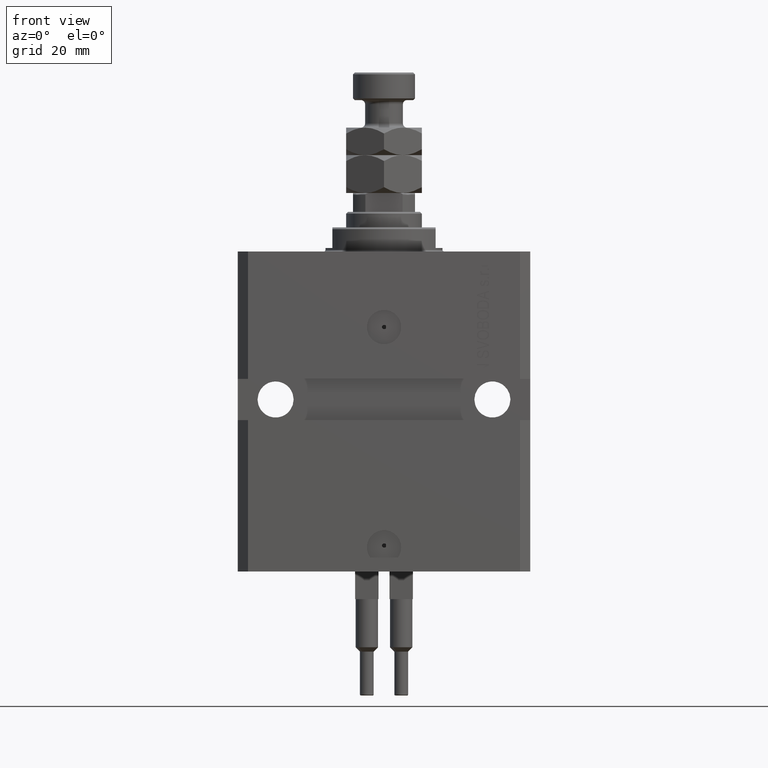
[diagram: clean part render]
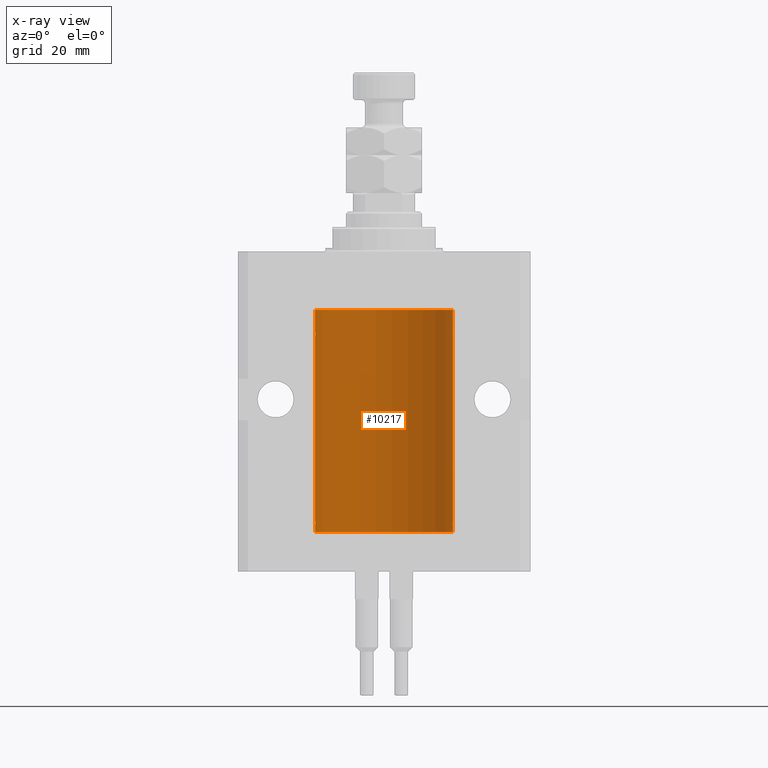
[diagram: x-ray — body ghosted, one internal face saturated and labeled with its STEP entity id]
A machine part, front view, then the same camera in x-ray: the body is ghosted and one INTERNAL B-rep face — a face not visible from any outside direction — is saturated and labeled: STEP entity #10217.
In plain terms, the highlighted cylindrical surface (partial cylindrical patch) has radius 20 mm, axis along (0, 0, 1).
Its self-contained STEP definition (entity closure, byte-faithful):
#104 = CARTESIAN_POINT ( 'NONE',  ( 19.99766100389833312, 0.3150982863324784944, -79.54594438241281296 ) ) ;
#196 = CARTESIAN_POINT ( 'NONE',  ( 0.000000000000000000, 0.000000000000000000, -81.59999999999999432 ) ) ;
#358 = CARTESIAN_POINT ( 'NONE',  ( 19.99947351343144319, 0.1636818329565372654, -79.60872855715646779 ) ) ;
#508 = EDGE_CURVE ( 'NONE', #32989, #44664, #4079, .T. ) ;
#769 = CARTESIAN_POINT ( 'NONE',  ( 19.99999999999999645, 0.1631318418333158327, -78.37500000000015632 ) ) ;
#1113 = EDGE_CURVE ( 'NONE', #4769, #19241, #6938, .T. ) ;
#1137 = CARTESIAN_POINT ( 'NONE',  ( -20.00000000000010303, 3.580159278407742946E-13, -24.62500000000332889 ) ) ;
#1195 = CARTESIAN_POINT ( 'NONE',  ( 20.00000000000010303, 3.555666340528858977E-13, -23.37499999999667111 ) ) ;
#2999 = CARTESIAN_POINT ( 'NONE',  ( -20.00000000000000000, -1.124177324826063808E-14, -78.37500000000000000 ) ) ;
#3001 = ORIENTED_EDGE ( 'NONE', *, *, #43287, .T. ) ;
#3592 = VECTOR ( 'NONE', #30779, 1000.000000000000000 ) ;
#3833 = CARTESIAN_POINT ( 'NONE',  ( -19.99256581701871838, 0.5573276956901996870, -78.67348565770949165 ) ) ;
#4079 = LINE ( 'NONE', #34557, #10216 ) ;
#4588 = CARTESIAN_POINT ( 'NONE',  ( -20.00000000000000355, 0.1631688615953343080, -79.62499999999984368 ) ) ;
#4769 = VERTEX_POINT ( 'NONE', #2999 ) ;
#5468 = VERTEX_POINT ( 'NONE', #13057 ) ;
#6118 = LINE ( 'NONE', #42199, #38127 ) ;
#6938 = LINE ( 'NONE', #11525, #45359 ) ;
#7106 = CARTESIAN_POINT ( 'NONE',  ( -19.99947377218718714, 0.1636439183262877461, -23.39126364004656011 ) ) ;
#7127 = VECTOR ( 'NONE', #43490, 1000.000000000000000 ) ;
#7368 = DIRECTION ( 'NONE',  ( 1.000000000000000000, 0.000000000000000000, 0.000000000000000000 ) ) ;
#7578 = ORIENTED_EDGE ( 'NONE', *, *, #29628, .T. ) ;
#8122 = DIRECTION ( 'NONE',  ( -0.000000000000000000, -0.000000000000000000, 1.000000000000000000 ) ) ;
#8943 = CARTESIAN_POINT ( 'NONE',  ( 20.00000000000000000, 0.000000000000000000, -81.59999999999999432 ) ) ;
#9115 = B_SPLINE_CURVE_WITH_KNOTS ( 'NONE', 3,
 ( #23971, #39580, #36264, #35755, #27553, #1195 ),
 .UNSPECIFIED., .F., .F.,
 ( 4, 2, 4 ),
 ( 0.0009772989342736214998, 0.001465726722058845102, 0.001954154509844068920 ),
 .UNSPECIFIED. ) ;
#9180 = CARTESIAN_POINT ( 'NONE',  ( -19.99023018003212471, 0.6250578794725522025, -79.16284809704971792 ) ) ;
#9710 = CARTESIAN_POINT ( 'NONE',  ( -20.00000000000010303, 3.580159286679549072E-13, -79.62500000000332534 ) ) ;
#9898 = VERTEX_POINT ( 'NONE', #19754 ) ;
#10132 = EDGE_CURVE ( 'NONE', #44428, #25129, #11446, .T. ) ;
#10181 = EDGE_CURVE ( 'NONE', #27315, #44428, #39509, .T. ) ;
#10216 = VECTOR ( 'NONE', #49885, 1000.000000000000000 ) ;
#10217 = ADVANCED_FACE ( 'NONE', ( #19886 ), #31413, .F. ) ;
#11192 = CARTESIAN_POINT ( 'NONE',  ( -19.99638934703457593, 0.3843678041337688644, -23.50046362978100944 ) ) ;
#11446 = LINE ( 'NONE', #19642, #50085 ) ;
#11525 = CARTESIAN_POINT ( 'NONE',  ( -20.00000000000000000, 2.449293598294706513E-15, -81.59999999999999432 ) ) ;
#12602 = CARTESIAN_POINT ( 'NONE',  ( 20.00000000000000000, 0.000000000000000000, -81.59999999999999432 ) ) ;
#13057 = CARTESIAN_POINT ( 'NONE',  ( 20.00000000000000000, 0.000000000000000000, -17.00000000000000000 ) ) ;
#13471 = CARTESIAN_POINT ( 'NONE',  ( 19.99023198964909298, 0.6250000000081508134, -23.99999999999910472 ) ) ;
#13788 = CARTESIAN_POINT ( 'NONE',  ( -20.00000000000000000, 2.449293598294706513E-15, -17.00000000000000000 ) ) ;
#14223 = CARTESIAN_POINT ( 'NONE',  ( 19.99023198964933812, 0.6250000000002681189, -24.16311014829328130 ) ) ;
#14521 = CARTESIAN_POINT ( 'NONE',  ( -19.99999999999999645, 0.08259581631026780002, -23.37500000000000000 ) ) ;
#14697 = VERTEX_POINT ( 'NONE', #48004 ) ;
#15074 = CARTESIAN_POINT ( 'NONE',  ( -19.99999999999999289, 0.08259581631026131909, -78.37499999999998579 ) ) ;
#15147 = LINE ( 'NONE', #30026, #3592 ) ;
#15395 = ORIENTED_EDGE ( 'NONE', *, *, #10132, .F. ) ;
#15644 = EDGE_CURVE ( 'NONE', #4769, #25129, #34748, .T. ) ;
#16206 = CARTESIAN_POINT ( 'NONE',  ( 19.99023198964934167, 0.6250000000002757794, -79.16311014829327064 ) ) ;
#16971 = EDGE_CURVE ( 'NONE', #44442, #49338, #6118, .T. ) ;
#17143 = EDGE_LOOP ( 'NONE', ( #15395, #49058, #3001, #36199, #49086, #35860, #39568, #38619, #21271, #46568, #22314, #7578, #30399, #34751 ) ) ;
#17554 = CARTESIAN_POINT ( 'NONE',  ( 20.00000000000000000, 1.042771508482559297E-15, -24.62500000000000000 ) ) ;
#18076 = CARTESIAN_POINT ( 'NONE',  ( 19.99947351343144675, 0.1636818329565319363, -24.60872855715643936 ) ) ;
#18274 = CIRCLE ( 'NONE', #25662, 20.00000000000000000 ) ;
#18874 = CARTESIAN_POINT ( 'NONE',  ( -19.99766197842594906, 0.3150331617867667688, -23.45402070102505476 ) ) ;
#19047 = AXIS2_PLACEMENT_3D ( 'NONE', #196, #26823, #7368 ) ;
#19241 = VERTEX_POINT ( 'NONE', #41200 ) ;
#19642 = CARTESIAN_POINT ( 'NONE',  ( -20.00000000000000000, 2.449293598294706513E-15, -81.59999999999999432 ) ) ;
#19754 = CARTESIAN_POINT ( 'NONE',  ( 20.00000000000000000, -4.058908006348821872E-15, -79.62500000000000000 ) ) ;
#19886 = FACE_OUTER_BOUND ( 'NONE', #17143, .T. ) ;
#19934 = CARTESIAN_POINT ( 'NONE',  ( -19.99253506710754991, 0.5587120480776742726, -79.32511620830248944 ) ) ;
#20995 = EDGE_CURVE ( 'NONE', #49338, #48951, #35438, .T. ) ;
#21271 = ORIENTED_EDGE ( 'NONE', *, *, #32471, .T. ) ;
#22182 = CARTESIAN_POINT ( 'NONE',  ( 19.99256353007439202, 0.5574106582031151946, -24.32639035180115172 ) ) ;
#22314 = ORIENTED_EDGE ( 'NONE', *, *, #508, .F. ) ;
#22735 = DIRECTION ( 'NONE',  ( 1.000000000000000000, 0.000000000000000000, 0.000000000000000000 ) ) ;
#23289 = CARTESIAN_POINT ( 'NONE',  ( -20.00000000000000000, -1.124177324826063808E-14, -78.37500000000000000 ) ) ;
#23312 = CARTESIAN_POINT ( 'NONE',  ( -20.00000000000000000, 2.449293598294706513E-15, -81.59999999999999432 ) ) ;
#23971 = CARTESIAN_POINT ( 'NONE',  ( 19.99023198964909298, 0.6250000000081508134, -23.99999999999910472 ) ) ;
#24715 = B_SPLINE_CURVE_WITH_KNOTS ( 'NONE', 3,
 ( #49583, #14521, #7106, #18874, #11192, #26815, #44367, #40539, #50594, #42925, #38842, #1137 ),
 .UNSPECIFIED., .F., .F.,
 ( 4, 2, 2, 2, 2, 4 ),
 ( 5.848927291235706941E-19, 0.0002442693137305304075, 0.0004885386274610601645, 0.0009770772549221123059, 0.001465615882383164339, 0.001954154509844215938 ),
 .UNSPECIFIED. ) ;
#25129 = VERTEX_POINT ( 'NONE', #9710 ) ;
#25510 = CARTESIAN_POINT ( 'NONE',  ( 19.99638788807192924, 0.3844440352705356112, -24.49948058986480603 ) ) ;
#25662 = AXIS2_PLACEMENT_3D ( 'NONE', #25937, #45879, #42305 ) ;
#25937 = CARTESIAN_POINT ( 'NONE',  ( 0.000000000000000000, 0.000000000000000000, -17.00000000000000000 ) ) ;
#26815 = CARTESIAN_POINT ( 'NONE',  ( -19.99256581701871482, 0.5573276956902001311, -23.67348565770948809 ) ) ;
#26823 = DIRECTION ( 'NONE',  ( 0.000000000000000000, 0.000000000000000000, 1.000000000000000000 ) ) ;
#27169 = VERTEX_POINT ( 'NONE', #33221 ) ;
#27231 = CARTESIAN_POINT ( 'NONE',  ( 20.00000000000000000, -4.058908006348821872E-15, -79.62500000000000000 ) ) ;
#27315 = VERTEX_POINT ( 'NONE', #12602 ) ;
#27317 = EDGE_CURVE ( 'NONE', #9898, #27169, #41182, .T. ) ;
#27553 = CARTESIAN_POINT ( 'NONE',  ( 19.99999999999999645, 0.1631318418333146114, -23.37500000000016698 ) ) ;
#27615 = CARTESIAN_POINT ( 'NONE',  ( -20.00000000000010303, 3.580159286679549072E-13, -79.62500000000332534 ) ) ;
#28132 = LINE ( 'NONE', #8943, #7127 ) ;
#29628 = EDGE_CURVE ( 'NONE', #32989, #19241, #24715, .T. ) ;
#30026 = CARTESIAN_POINT ( 'NONE',  ( 20.00000000000000000, 0.000000000000000000, -81.59999999999999432 ) ) ;
#30399 = ORIENTED_EDGE ( 'NONE', *, *, #1113, .F. ) ;
#30707 = CARTESIAN_POINT ( 'NONE',  ( -19.99947377218718003, 0.1636439183262797525, -78.39126364004653169 ) ) ;
#30779 = DIRECTION ( 'NONE',  ( -0.000000000000000000, -0.000000000000000000, 1.000000000000000000 ) ) ;
#30982 = CARTESIAN_POINT ( 'NONE',  ( 19.99023198964936299, 0.6249999999995806688, -78.83696384779808852 ) ) ;
#31075 = CARTESIAN_POINT ( 'NONE',  ( 19.99023198964909298, 0.6250000000081574747, -78.99999999999911893 ) ) ;
#31413 = CYLINDRICAL_SURFACE ( 'NONE', #44397, 20.00000000000000000 ) ;
#31483 = CARTESIAN_POINT ( 'NONE',  ( 20.00000000000010303, 3.555666352936568165E-13, -78.37499999999667466 ) ) ;
#32447 = EDGE_CURVE ( 'NONE', #5468, #44664, #18274, .T. ) ;
#32471 = EDGE_CURVE ( 'NONE', #14697, #5468, #15147, .T. ) ;
#32735 = CARTESIAN_POINT ( 'NONE',  ( -19.99023380173166231, 0.6249420416828449509, -78.83670793056396064 ) ) ;
#32989 = VERTEX_POINT ( 'NONE', #47826 ) ;
#33221 = CARTESIAN_POINT ( 'NONE',  ( 19.99023198964909298, 0.6250000000081574747, -78.99999999999911893 ) ) ;
#33746 = EDGE_CURVE ( 'NONE', #27169, #44442, #50602, .T. ) ;
#34557 = CARTESIAN_POINT ( 'NONE',  ( -20.00000000000000000, 2.449293598294706513E-15, -81.59999999999999432 ) ) ;
#34748 = B_SPLINE_CURVE_WITH_KNOTS ( 'NONE', 3,
 ( #23289, #15074, #30707, #46306, #38896, #3833, #32735, #9180, #19934, #36583, #4588, #27615 ),
 .UNSPECIFIED., .F., .F.,
 ( 4, 2, 2, 2, 2, 4 ),
 ( 1.522880481566060999E-18, 0.0002442693137305179392, 0.0004885386274610343605, 0.0009770772549220966934, 0.001465615882383158918, 0.001954154509844221576 ),
 .UNSPECIFIED. ) ;
#34751 = ORIENTED_EDGE ( 'NONE', *, *, #15644, .T. ) ;
#35015 = DIRECTION ( 'NONE',  ( -0.000000000000000000, -0.000000000000000000, 1.000000000000000000 ) ) ;
#35420 = CARTESIAN_POINT ( 'NONE',  ( 19.99999999999999645, 0.08261455565447825555, -79.62499999999997158 ) ) ;
#35438 = B_SPLINE_CURVE_WITH_KNOTS ( 'NONE', 3,
 ( #49532, #48781, #18076, #49040, #25510, #22182, #14223, #13471 ),
 .UNSPECIFIED., .F., .F.,
 ( 4, 2, 2, 4 ),
 ( 1.013370767385449693E-18, 0.0002443247335684061339, 0.0004886494671368111836, 0.0009772989342736214998 ),
 .UNSPECIFIED. ) ;
#35755 = CARTESIAN_POINT ( 'NONE',  ( 19.99769474220010679, 0.3253030616682399678, -23.44140633897632142 ) ) ;
#35860 = ORIENTED_EDGE ( 'NONE', *, *, #16971, .T. ) ;
#36199 = ORIENTED_EDGE ( 'NONE', *, *, #27317, .T. ) ;
#36264 = CARTESIAN_POINT ( 'NONE',  ( 19.99253733128256272, 0.5586305947778931191, -23.67476036735258305 ) ) ;
#36583 = CARTESIAN_POINT ( 'NONE',  ( -19.99769349528941831, 0.3253804398728615266, -79.55855820727680339 ) ) ;
#38127 = VECTOR ( 'NONE', #48847, 1000.000000000000000 ) ;
#38619 = ORIENTED_EDGE ( 'NONE', *, *, #41967, .T. ) ;
#38842 = CARTESIAN_POINT ( 'NONE',  ( -20.00000000000000000, 0.1631688615953320320, -24.62499999999985434 ) ) ;
#38896 = CARTESIAN_POINT ( 'NONE',  ( -19.99638934703457238, 0.3843678041337651452, -78.50046362978099523 ) ) ;
#38900 = CARTESIAN_POINT ( 'NONE',  ( 19.99023198964909298, 0.6250000000081508134, -23.99999999999910472 ) ) ;
#39504 = CARTESIAN_POINT ( 'NONE',  ( 19.99256353007439202, 0.5574106582031174151, -79.32639035180115172 ) ) ;
#39509 = CIRCLE ( 'NONE', #19047, 20.00000000000000000 ) ;
#39568 = ORIENTED_EDGE ( 'NONE', *, *, #20995, .T. ) ;
#39580 = CARTESIAN_POINT ( 'NONE',  ( 19.99023198964935588, 0.6249999999995746736, -23.83696384779806721 ) ) ;
#39667 = CARTESIAN_POINT ( 'NONE',  ( 19.99023198964909298, 0.6250000000081574747, -78.99999999999911893 ) ) ;
#39927 = CARTESIAN_POINT ( 'NONE',  ( 19.99253733128256627, 0.5586305947779004466, -78.67476036735259015 ) ) ;
#40539 = CARTESIAN_POINT ( 'NONE',  ( -19.99023018003212471, 0.6250578794725500931, -24.16284809704970371 ) ) ;
#41182 = B_SPLINE_CURVE_WITH_KNOTS ( 'NONE', 3,
 ( #27231, #35420, #358, #104, #43591, #39504, #16206, #31075 ),
 .UNSPECIFIED., .F., .F.,
 ( 4, 2, 2, 4 ),
 ( 3.944467879762244826E-18, 0.0002443247335684012008, 0.0004886494671367983900, 0.0009772989342736221503 ),
 .UNSPECIFIED. ) ;
#41200 = CARTESIAN_POINT ( 'NONE',  ( -20.00000000000010303, 3.580159278407742946E-13, -24.62500000000332889 ) ) ;
#41967 = EDGE_CURVE ( 'NONE', #48951, #14697, #9115, .T. ) ;
#42199 = CARTESIAN_POINT ( 'NONE',  ( 20.00000000000000000, 0.000000000000000000, -81.59999999999999432 ) ) ;
#42305 = DIRECTION ( 'NONE',  ( 1.000000000000000000, 0.000000000000000000, 0.000000000000000000 ) ) ;
#42751 = CARTESIAN_POINT ( 'NONE',  ( 19.99769474220011034, 0.3253030616682413001, -78.44140633897630721 ) ) ;
#42925 = CARTESIAN_POINT ( 'NONE',  ( -19.99769349528941120, 0.3253804398728645242, -24.55855820727680339 ) ) ;
#43287 = EDGE_CURVE ( 'NONE', #27315, #9898, #28132, .T. ) ;
#43490 = DIRECTION ( 'NONE',  ( -0.000000000000000000, -0.000000000000000000, 1.000000000000000000 ) ) ;
#43591 = CARTESIAN_POINT ( 'NONE',  ( 19.99638788807192924, 0.3844440352705359998, -79.49948058986481669 ) ) ;
#44367 = CARTESIAN_POINT ( 'NONE',  ( -19.99023380173166231, 0.6249420416828462832, -23.83670793056396064 ) ) ;
#44397 = AXIS2_PLACEMENT_3D ( 'NONE', #47007, #8122, #22735 ) ;
#44428 = VERTEX_POINT ( 'NONE', #23312 ) ;
#44442 = VERTEX_POINT ( 'NONE', #46829 ) ;
#44664 = VERTEX_POINT ( 'NONE', #13788 ) ;
#45359 = VECTOR ( 'NONE', #46080, 1000.000000000000000 ) ;
#45879 = DIRECTION ( 'NONE',  ( 0.000000000000000000, 0.000000000000000000, 1.000000000000000000 ) ) ;
#46080 = DIRECTION ( 'NONE',  ( -0.000000000000000000, -0.000000000000000000, 1.000000000000000000 ) ) ;
#46306 = CARTESIAN_POINT ( 'NONE',  ( -19.99766197842594551, 0.3150331617867603295, -78.45402070102504410 ) ) ;
#46568 = ORIENTED_EDGE ( 'NONE', *, *, #32447, .T. ) ;
#46829 = CARTESIAN_POINT ( 'NONE',  ( 20.00000000000010303, 3.555666352936568165E-13, -78.37499999999667466 ) ) ;
#47007 = CARTESIAN_POINT ( 'NONE',  ( 0.000000000000000000, 0.000000000000000000, -81.59999999999999432 ) ) ;
#47826 = CARTESIAN_POINT ( 'NONE',  ( -20.00000000000000000, -2.867584836844214272E-15, -23.37500000000000000 ) ) ;
#48004 = CARTESIAN_POINT ( 'NONE',  ( 20.00000000000010303, 3.555666340528858977E-13, -23.37499999999667111 ) ) ;
#48781 = CARTESIAN_POINT ( 'NONE',  ( 19.99999999999999645, 0.08261455565447869964, -24.62499999999998579 ) ) ;
#48847 = DIRECTION ( 'NONE',  ( -0.000000000000000000, -0.000000000000000000, 1.000000000000000000 ) ) ;
#48951 = VERTEX_POINT ( 'NONE', #38900 ) ;
#49040 = CARTESIAN_POINT ( 'NONE',  ( 19.99766100389832957, 0.3150982863324730543, -24.54594438241278453 ) ) ;
#49058 = ORIENTED_EDGE ( 'NONE', *, *, #10181, .F. ) ;
#49086 = ORIENTED_EDGE ( 'NONE', *, *, #33746, .T. ) ;
#49338 = VERTEX_POINT ( 'NONE', #17554 ) ;
#49532 = CARTESIAN_POINT ( 'NONE',  ( 20.00000000000000000, 1.042771508482559297E-15, -24.62500000000000000 ) ) ;
#49583 = CARTESIAN_POINT ( 'NONE',  ( -20.00000000000000000, -2.867584836844214272E-15, -23.37500000000000000 ) ) ;
#49885 = DIRECTION ( 'NONE',  ( -0.000000000000000000, -0.000000000000000000, 1.000000000000000000 ) ) ;
#50085 = VECTOR ( 'NONE', #35015, 1000.000000000000000 ) ;
#50594 = CARTESIAN_POINT ( 'NONE',  ( -19.99253506710754991, 0.5587120480776751608, -24.32511620830248589 ) ) ;
#50602 = B_SPLINE_CURVE_WITH_KNOTS ( 'NONE', 3,
 ( #39667, #30982, #39927, #42751, #769, #31483 ),
 .UNSPECIFIED., .F., .F.,
 ( 4, 2, 4 ),
 ( 0.0009772989342736221503, 0.001465726722058849005, 0.001954154509844075859 ),
 .UNSPECIFIED. ) ;